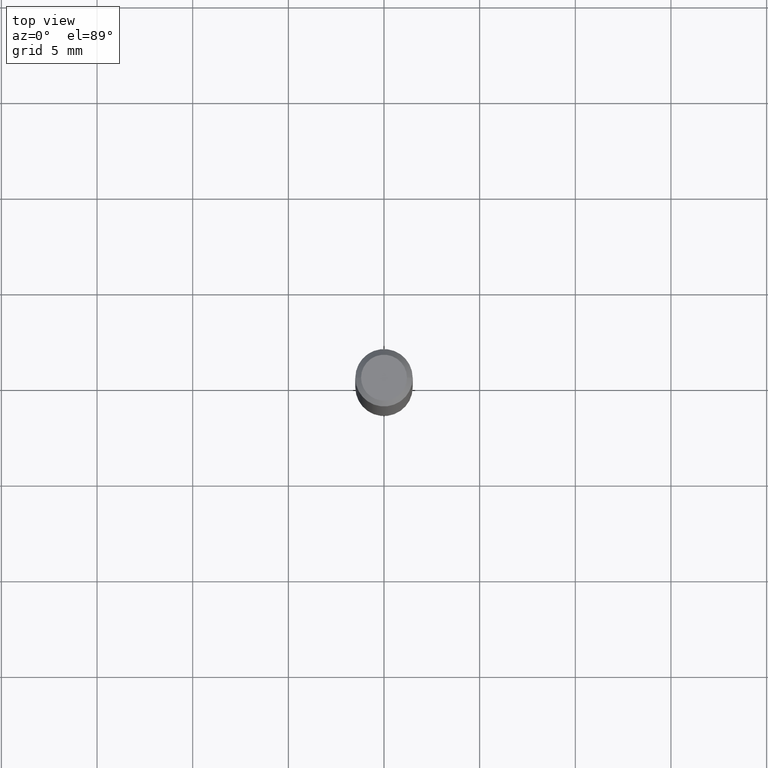
[diagram: clean part render]
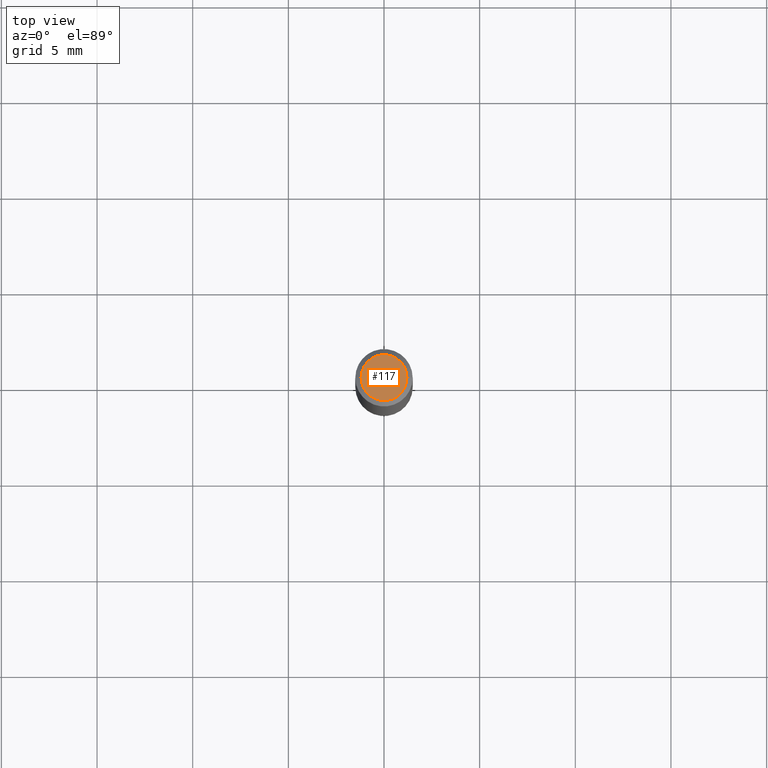
[diagram: same view with one face highlighted and labeled with its STEP entity id]
A machine part, top view. The second image highlights one B-rep face of the part: STEP entity #117.
In plain terms, the highlighted planar face has unit normal (0, -0, -1).
Its self-contained STEP definition (entity closure, byte-faithful):
#55 = CARTESIAN_POINT ( 'NONE',  ( 8.265746106709734507E-48, -1.180129479067563789E-33, -3.380025165646692144E-19 ) ) ;
#57 = DIRECTION ( 'NONE',  ( 1.000000000000000000, -6.982962677686266711E-15, 4.876185090822587894E-29 ) ) ;
#70 = EDGE_CURVE ( 'NONE', #194, #125, #82, .T. ) ;
#73 = CARTESIAN_POINT ( 'NONE',  ( 0.04724000000000000421, -3.852183633974369345E-16, -3.380025165621689721E-19 ) ) ;
#82 = CIRCLE ( 'NONE', #481, 0.04724000000000000421 ) ;
#103 = AXIS2_PLACEMENT_3D ( 'NONE', #55, #124, #246 ) ;
#104 = ORIENTED_EDGE ( 'NONE', *, *, #70, .T. ) ;
#117 = ADVANCED_FACE ( 'NONE', ( #411 ), #484, .F. ) ;
#124 = DIRECTION ( 'NONE',  ( -2.445468806185136597E-29, 3.491481338843145583E-15, 1.000000000000000000 ) ) ;
#125 = VERTEX_POINT ( 'NONE', #449 ) ;
#139 = CARTESIAN_POINT ( 'NONE',  ( 4.132873053354867254E-48, -5.900647395337818946E-34, -1.690012582823346072E-19 ) ) ;
#142 = EDGE_LOOP ( 'NONE', ( #315, #104 ) ) ;
#175 = CARTESIAN_POINT ( 'NONE',  ( 8.265746106709734507E-48, -1.180129479067563789E-33, -3.380025165646692144E-19 ) ) ;
#177 = DIRECTION ( 'NONE',  ( -1.000000000000000000, 6.982962677686265922E-15, -4.876176775795935793E-29 ) ) ;
#194 = VERTEX_POINT ( 'NONE', #73 ) ;
#246 = DIRECTION ( 'NONE',  ( 1.000000000000000000, -6.982962677686266711E-15, 4.876185090822587894E-29 ) ) ;
#247 = DIRECTION ( 'NONE',  ( -2.445468806185136597E-29, 3.491481338843145583E-15, 1.000000000000000000 ) ) ;
#250 = CIRCLE ( 'NONE', #103, 0.04724000000000000421 ) ;
#297 = DIRECTION ( 'NONE',  ( 2.438088387897960049E-29, -3.491481338843145188E-15, -1.000000000000000000 ) ) ;
#315 = ORIENTED_EDGE ( 'NONE', *, *, #372, .T. ) ;
#372 = EDGE_CURVE ( 'NONE', #125, #194, #250, .T. ) ;
#411 = FACE_OUTER_BOUND ( 'NONE', #142, .T. ) ;
#449 = CARTESIAN_POINT ( 'NONE',  ( -0.04724000000000000421, 3.504923541997677355E-16, -3.380025165670481712E-19 ) ) ;
#453 = AXIS2_PLACEMENT_3D ( 'NONE', #139, #297, #177 ) ;
#481 = AXIS2_PLACEMENT_3D ( 'NONE', #175, #247, #57 ) ;
#484 = PLANE ( 'NONE',  #453 ) ;